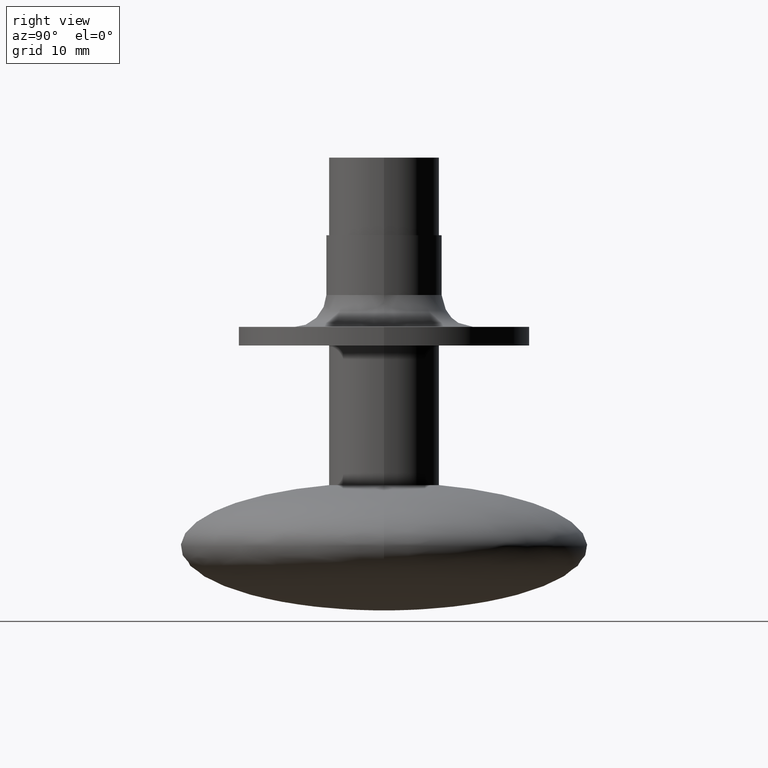
[diagram: clean part render]
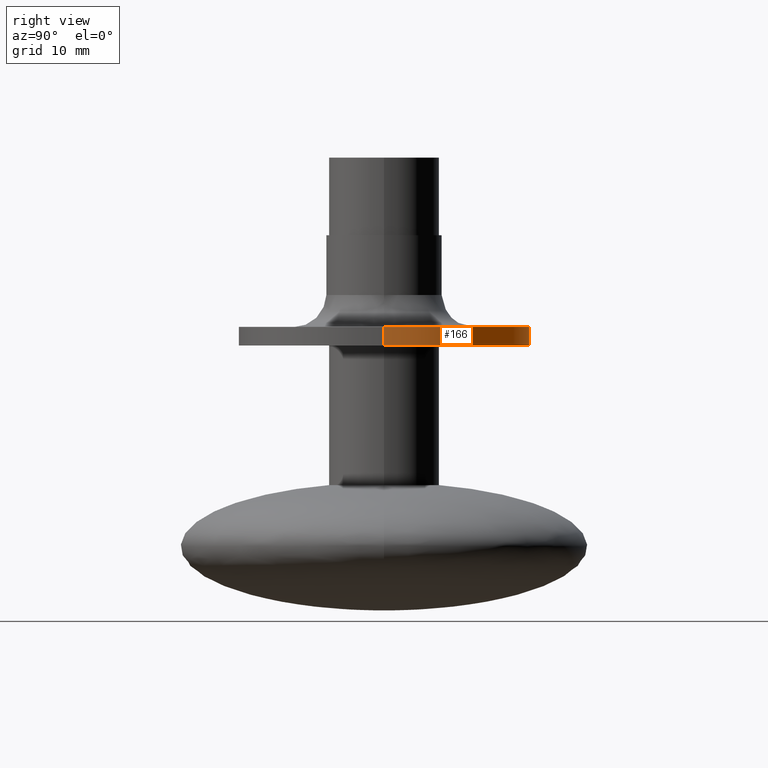
[diagram: same view with one face highlighted and labeled with its STEP entity id]
A machine part, right view. The second image highlights one B-rep face of the part: STEP entity #166.
In plain terms, the highlighted cylindrical surface (partial cylindrical patch) has radius 12.5 mm, axis along (0, 0, 1).
Its self-contained STEP definition (entity closure, byte-faithful):
#166=ADVANCED_FACE('',(#357),#356,.T.);
#356=CYLINDRICAL_SURFACE('',#647,1.25000000000E+01);
#357=FACE_OUTER_BOUND('',#648,.T.);
#644=CARTESIAN_POINT('',(0.00000000000E+00,0.00000000000E+00,0.00000000000E+00));
#645=DIRECTION('',(-0.00000000000E+00,-0.00000000000E+00,1.00000000000E+00));
#646=DIRECTION('',(1.00000000000E+00,-0.00000000000E+00,-0.00000000000E+00));
#647=AXIS2_PLACEMENT_3D('',#644,#645,#646);
#648=EDGE_LOOP('',(#821,#822,#823,#824));
#821=ORIENTED_EDGE('',*,*,#868,.T.);
#822=ORIENTED_EDGE('',*,*,#899,.F.);
#823=ORIENTED_EDGE('',*,*,#857,.F.);
#824=ORIENTED_EDGE('',*,*,#900,.T.);
#857=EDGE_CURVE('',#915,#916,#917,.T.);
#868=EDGE_CURVE('',#986,#985,#993,.T.);
#899=EDGE_CURVE('',#916,#985,#1195,.T.);
#900=EDGE_CURVE('',#915,#986,#1201,.T.);
#915=VERTEX_POINT('',#1300);
#916=VERTEX_POINT('',#1301);
#917=CIRCLE('',#1305,1.25000000000E+01);
#985=VERTEX_POINT('',#1350);
#986=VERTEX_POINT('',#1351);
#993=CIRCLE('',#1359,1.25000000000E+01);
#1195=(BOUNDED_CURVE() B_SPLINE_CURVE(1,(#1472,#1473),.UNSPECIFIED.,.F.,.F.) B_SPLINE_CURVE_WITH_KNOTS((2,2),(8.33333134656E-02,9.16666653270E-01),.UNSPECIFIED.) CURVE() GEOMETRIC_REPRESENTATION_ITEM() RATIONAL_B_SPLINE_CURVE((1.00000000000E+00,1.00000000000E+00)) REPRESENTATION_ITEM('') );
#1201=(BOUNDED_CURVE() B_SPLINE_CURVE(1,(#1474,#1475),.UNSPECIFIED.,.F.,.F.) B_SPLINE_CURVE_WITH_KNOTS((2,2),(8.33333333333E-02,9.16666666667E-01),.UNSPECIFIED.) CURVE() GEOMETRIC_REPRESENTATION_ITEM() RATIONAL_B_SPLINE_CURVE((7.50000000000E-01,7.50000000000E-01)) REPRESENTATION_ITEM('') );
#1300=CARTESIAN_POINT('',(-1.25000000000E+01,0.00000000000E+00,-1.61847590000E+01));
#1301=CARTESIAN_POINT('',(1.25000000000E+01,0.00000000000E+00,-1.61847590000E+01));
#1302=CARTESIAN_POINT('',(0.00000000000E+00,0.00000000000E+00,-1.61847590000E+01));
#1303=DIRECTION('',(-0.00000000000E+00,0.00000000000E+00,-1.00000000000E+00));
#1304=DIRECTION('',(-1.00000000000E+00,-1.22460635382E-16,0.00000000000E+00));
#1305=AXIS2_PLACEMENT_3D('',#1302,#1303,#1304);
#1350=CARTESIAN_POINT('',(1.25000000000E+01,0.00000000000E+00,-1.45847590000E+01));
#1351=CARTESIAN_POINT('',(-1.25000000000E+01,0.00000000000E+00,-1.45847590000E+01));
#1356=CARTESIAN_POINT('',(0.00000000000E+00,0.00000000000E+00,-1.45847590000E+01));
#1357=DIRECTION('',(-0.00000000000E+00,0.00000000000E+00,-1.00000000000E+00));
#1358=DIRECTION('',(-1.00000000000E+00,-1.22460635382E-16,0.00000000000E+00));
#1359=AXIS2_PLACEMENT_3D('',#1356,#1357,#1358);
#1472=CARTESIAN_POINT('',(1.25000000000E+01,0.00000000000E+00,-1.61847590381E+01));
#1473=CARTESIAN_POINT('',(1.25000000000E+01,0.00000000000E+00,-1.45847590257E+01));
#1474=CARTESIAN_POINT('',(-1.25000000000E+01,0.00000000000E+00,-1.61847590000E+01));
#1475=CARTESIAN_POINT('',(-1.25000000000E+01,0.00000000000E+00,-1.45847590000E+01));